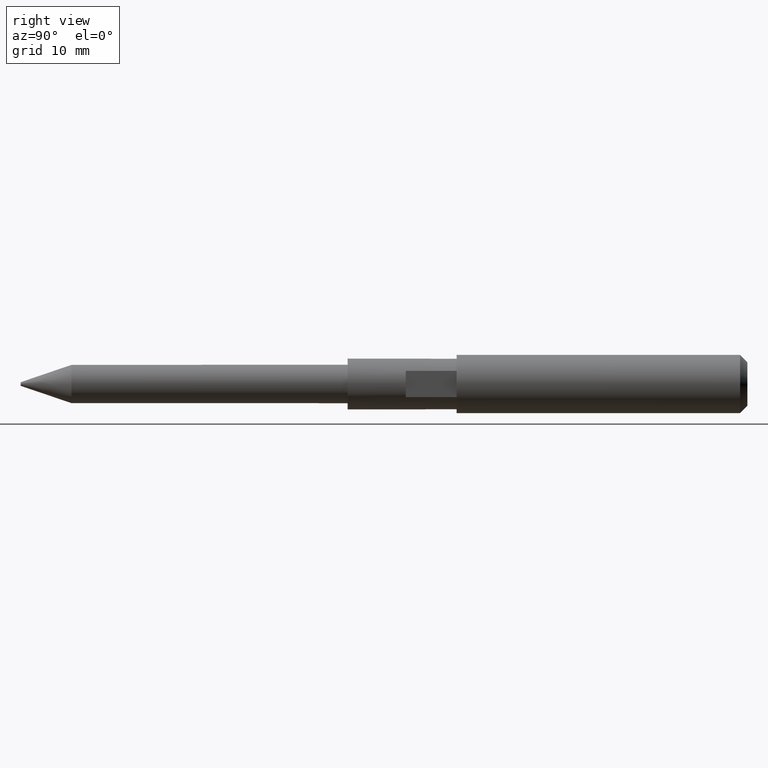
[diagram: clean part render]
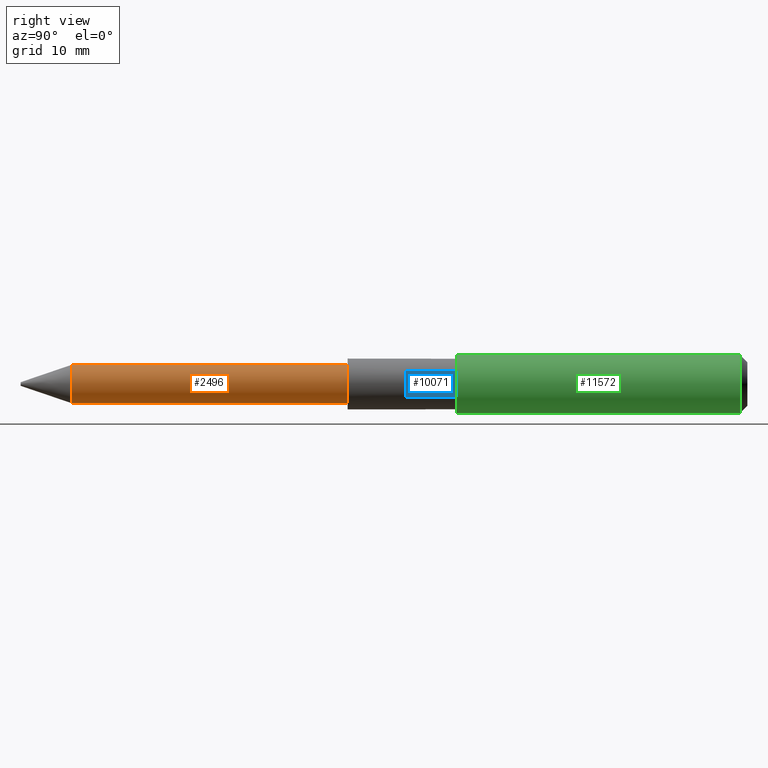
[diagram: same view with three faces highlighted in distinct colors, each labeled with its STEP entity id]
A machine part, right view with three faces highlighted in distinct colors.
Their STEP definitions:

[orange] entity #2496 — the highlighted cylindrical surface (bore or boss wall) has radius 2.65 mm, axis along (-0, 1, -0).
#891 = CIRCLE ( 'NONE', #10933, 2.650000000000001200 ) ;
#1048 = ORIENTED_EDGE ( 'NONE', *, *, #6038, .T. ) ;
#1352 = DIRECTION ( 'NONE',  ( -1.196309205990161700E-016, 1.000000000000000000, -0.0000000000000000000 ) ) ;
#1518 = EDGE_LOOP ( 'NONE', ( #3608 ) ) ;
#1605 = EDGE_CURVE ( 'NONE', #14912, #14912, #13943, .T. ) ;
#2496 = ADVANCED_FACE ( 'NONE', ( #14029, #5002 ), #10263, .T. ) ;
#2706 = CARTESIAN_POINT ( 'NONE',  ( -2.649999999999994600, -45.50000000000000000, 0.0000000000000000000 ) ) ;
#2715 = AXIS2_PLACEMENT_3D ( 'NONE', #9542, #1352, #3661 ) ;
#2908 = DIRECTION ( 'NONE',  ( -0.0000000000000000000, -1.000000000000000000, -0.0000000000000000000 ) ) ;
#3121 = AXIS2_PLACEMENT_3D ( 'NONE', #10497, #8319, #4673 ) ;
#3608 = ORIENTED_EDGE ( 'NONE', *, *, #1605, .T. ) ;
#3661 = DIRECTION ( 'NONE',  ( -1.000000000000000000, 0.0000000000000000000, 0.0000000000000000000 ) ) ;
#3966 = CARTESIAN_POINT ( 'NONE',  ( 4.336808689942017700E-016, -7.500000000000000000, 0.0000000000000000000 ) ) ;
#4110 = CARTESIAN_POINT ( 'NONE',  ( 4.336808689942017700E-016, -7.500000000000000000, 2.650000000000001200 ) ) ;
#4673 = DIRECTION ( 'NONE',  ( -1.000000000000000000, 0.0000000000000000000, 0.0000000000000000000 ) ) ;
#5002 = FACE_OUTER_BOUND ( 'NONE', #1518, .T. ) ;
#5132 = DIRECTION ( 'NONE',  ( 0.0000000000000000000, 0.0000000000000000000, 1.000000000000000000 ) ) ;
#6038 = EDGE_CURVE ( 'NONE', #7739, #7739, #891, .T. ) ;
#7739 = VERTEX_POINT ( 'NONE', #4110 ) ;
#8319 = DIRECTION ( 'NONE',  ( -1.196309205990161700E-016, 1.000000000000000000, -0.0000000000000000000 ) ) ;
#9542 = CARTESIAN_POINT ( 'NONE',  ( 4.336808689942017700E-016, -7.500000000000000000, 0.0000000000000000000 ) ) ;
#10263 = CYLINDRICAL_SURFACE ( 'NONE', #2715, 2.650000000000001200 ) ;
#10284 = EDGE_LOOP ( 'NONE', ( #1048 ) ) ;
#10497 = CARTESIAN_POINT ( 'NONE',  ( 4.979655851756816200E-015, -45.50000000000000000, 0.0000000000000000000 ) ) ;
#10933 = AXIS2_PLACEMENT_3D ( 'NONE', #3966, #2908, #5132 ) ;
#13943 = CIRCLE ( 'NONE', #3121, 2.649999999999999000 ) ;
#14029 = FACE_OUTER_BOUND ( 'NONE', #10284, .T. ) ;
#14912 = VERTEX_POINT ( 'NONE', #2706 ) ;

[blue] entity #10071 — the highlighted planar face has unit normal (-1, 0, 0).
#69 = PLANE ( 'NONE',  #6603 ) ;
#1448 = LINE ( 'NONE', #13944, #8402 ) ;
#1494 = EDGE_CURVE ( 'NONE', #10931, #3273, #1448, .T. ) ;
#1523 = VECTOR ( 'NONE', #14594, 1000.000000000000000 ) ;
#1666 = LINE ( 'NONE', #9324, #4044 ) ;
#2249 = DIRECTION ( 'NONE',  ( -0.0000000000000000000, -0.0000000000000000000, 1.000000000000000000 ) ) ;
#2315 = ORIENTED_EDGE ( 'NONE', *, *, #1494, .T. ) ;
#3097 = EDGE_CURVE ( 'NONE', #12401, #3273, #1666, .T. ) ;
#3273 = VERTEX_POINT ( 'NONE', #9990 ) ;
#3415 = FACE_OUTER_BOUND ( 'NONE', #12982, .T. ) ;
#3649 = DIRECTION ( 'NONE',  ( -0.0000000000000000000, -1.000000000000000000, -0.0000000000000000000 ) ) ;
#4044 = VECTOR ( 'NONE', #9615, 1000.000000000000000 ) ;
#4906 = CARTESIAN_POINT ( 'NONE',  ( 3.000000000000001300, 17.39949493661166400, -1.802775637731992300 ) ) ;
#6054 = CARTESIAN_POINT ( 'NONE',  ( 3.000000000000000000, 7.500000000000000000, -4.000000000000000000 ) ) ;
#6603 = AXIS2_PLACEMENT_3D ( 'NONE', #6054, #10655, #7311 ) ;
#7213 = CARTESIAN_POINT ( 'NONE',  ( 2.999999999999999100, 0.5000000000000004400, 1.802775637731992600 ) ) ;
#7311 = DIRECTION ( 'NONE',  ( -1.239088197126291300E-016, -1.000000000000000000, 0.0000000000000000000 ) ) ;
#7647 = ORIENTED_EDGE ( 'NONE', *, *, #3097, .F. ) ;
#7684 = ORIENTED_EDGE ( 'NONE', *, *, #12970, .F. ) ;
#7686 = ORIENTED_EDGE ( 'NONE', *, *, #10550, .F. ) ;
#8118 = LINE ( 'NONE', #8661, #1523 ) ;
#8402 = VECTOR ( 'NONE', #2249, 1000.000000000000000 ) ;
#8661 = CARTESIAN_POINT ( 'NONE',  ( 2.999999999999999100, 0.5000000000000004400, -4.000000000000000000 ) ) ;
#9324 = CARTESIAN_POINT ( 'NONE',  ( 3.000000000000001300, 17.39949493661166400, 1.802775637731992300 ) ) ;
#9615 = DIRECTION ( 'NONE',  ( 0.0000000000000000000, 1.000000000000000000, 0.0000000000000000000 ) ) ;
#9913 = VERTEX_POINT ( 'NONE', #9938 ) ;
#9938 = CARTESIAN_POINT ( 'NONE',  ( 2.999999999999999100, 0.5000000000000004400, -1.802775637731992600 ) ) ;
#9990 = CARTESIAN_POINT ( 'NONE',  ( 3.000000000000000000, 7.500000000000000000, 1.802775637731995200 ) ) ;
#10071 = ADVANCED_FACE ( 'NONE', ( #3415 ), #69, .F. ) ;
#10172 = LINE ( 'NONE', #4906, #14032 ) ;
#10550 = EDGE_CURVE ( 'NONE', #10931, #9913, #10172, .T. ) ;
#10655 = DIRECTION ( 'NONE',  ( -1.000000000000000000, 1.239088197126291300E-016, 0.0000000000000000000 ) ) ;
#10931 = VERTEX_POINT ( 'NONE', #12672 ) ;
#12401 = VERTEX_POINT ( 'NONE', #7213 ) ;
#12672 = CARTESIAN_POINT ( 'NONE',  ( 3.000000000000000000, 7.500000000000000000, -1.802775637731995000 ) ) ;
#12970 = EDGE_CURVE ( 'NONE', #9913, #12401, #8118, .T. ) ;
#12982 = EDGE_LOOP ( 'NONE', ( #2315, #7647, #7684, #7686 ) ) ;
#13944 = CARTESIAN_POINT ( 'NONE',  ( 3.000000000000000000, 7.500000000000000000, -4.000000000000000000 ) ) ;
#14032 = VECTOR ( 'NONE', #3649, 1000.000000000000000 ) ;
#14594 = DIRECTION ( 'NONE',  ( -0.0000000000000000000, -0.0000000000000000000, 1.000000000000000000 ) ) ;

[green] entity #11572 — the highlighted cylindrical surface (bore or boss wall) has radius 4 mm, axis along (-0, -1, -0).
#457 = CIRCLE ( 'NONE', #3603, 4.000000000000000000 ) ;
#657 = AXIS2_PLACEMENT_3D ( 'NONE', #9553, #8658, #10986 ) ;
#1104 = EDGE_CURVE ( 'NONE', #13059, #13059, #457, .T. ) ;
#1109 = DIRECTION ( 'NONE',  ( 0.0000000000000000000, 0.0000000000000000000, 1.000000000000000000 ) ) ;
#1233 = ORIENTED_EDGE ( 'NONE', *, *, #3460, .T. ) ;
#1595 = EDGE_LOOP ( 'NONE', ( #7155 ) ) ;
#2535 = DIRECTION ( 'NONE',  ( 0.0000000000000000000, 0.0000000000000000000, 1.000000000000000000 ) ) ;
#3460 = EDGE_CURVE ( 'NONE', #6994, #6994, #10479, .T. ) ;
#3603 = AXIS2_PLACEMENT_3D ( 'NONE', #6022, #3702, #2535 ) ;
#3702 = DIRECTION ( 'NONE',  ( 0.0000000000000000000, -1.000000000000000000, 0.0000000000000000000 ) ) ;
#3733 = FACE_OUTER_BOUND ( 'NONE', #1595, .T. ) ;
#5937 = CARTESIAN_POINT ( 'NONE',  ( 0.0000000000000000000, 7.500000000000000000, 0.0000000000000000000 ) ) ;
#6022 = CARTESIAN_POINT ( 'NONE',  ( 0.0000000000000000000, 46.50000000000000000, 0.0000000000000000000 ) ) ;
#6994 = VERTEX_POINT ( 'NONE', #12332 ) ;
#7155 = ORIENTED_EDGE ( 'NONE', *, *, #1104, .T. ) ;
#8477 = FACE_OUTER_BOUND ( 'NONE', #11693, .T. ) ;
#8658 = DIRECTION ( 'NONE',  ( -0.0000000000000000000, -1.000000000000000000, -0.0000000000000000000 ) ) ;
#9553 = CARTESIAN_POINT ( 'NONE',  ( 0.0000000000000000000, 47.50000000000000000, 0.0000000000000000000 ) ) ;
#9963 = CARTESIAN_POINT ( 'NONE',  ( 0.0000000000000000000, 46.50000000000000000, 4.000000000000000000 ) ) ;
#10479 = CIRCLE ( 'NONE', #12343, 4.000000000000000000 ) ;
#10986 = DIRECTION ( 'NONE',  ( 0.0000000000000000000, 0.0000000000000000000, -1.000000000000000000 ) ) ;
#11572 = ADVANCED_FACE ( 'NONE', ( #3733, #8477 ), #14755, .T. ) ;
#11693 = EDGE_LOOP ( 'NONE', ( #1233 ) ) ;
#12332 = CARTESIAN_POINT ( 'NONE',  ( 0.0000000000000000000, 7.500000000000000000, 4.000000000000000000 ) ) ;
#12343 = AXIS2_PLACEMENT_3D ( 'NONE', #5937, #14181, #1109 ) ;
#13059 = VERTEX_POINT ( 'NONE', #9963 ) ;
#14181 = DIRECTION ( 'NONE',  ( 0.0000000000000000000, 1.000000000000000000, 0.0000000000000000000 ) ) ;
#14755 = CYLINDRICAL_SURFACE ( 'NONE', #657, 4.000000000000000000 ) ;